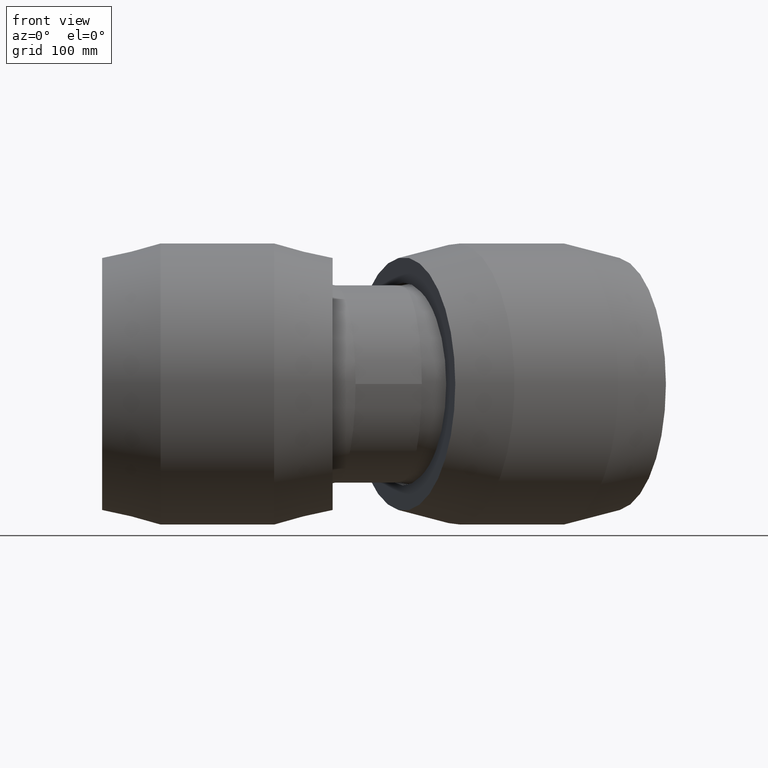
[diagram: clean part render]
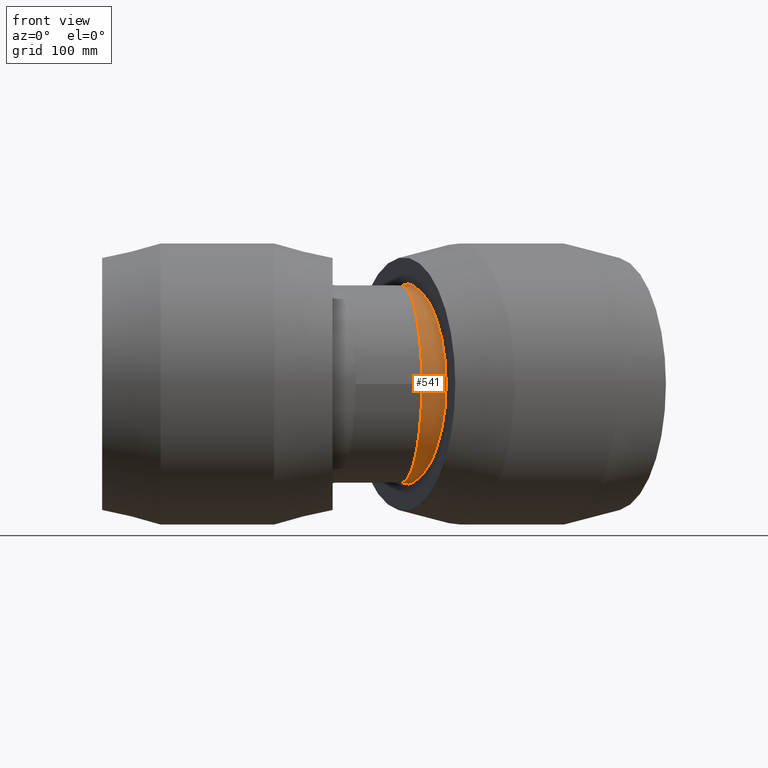
[diagram: same view with one face highlighted and labeled with its STEP entity id]
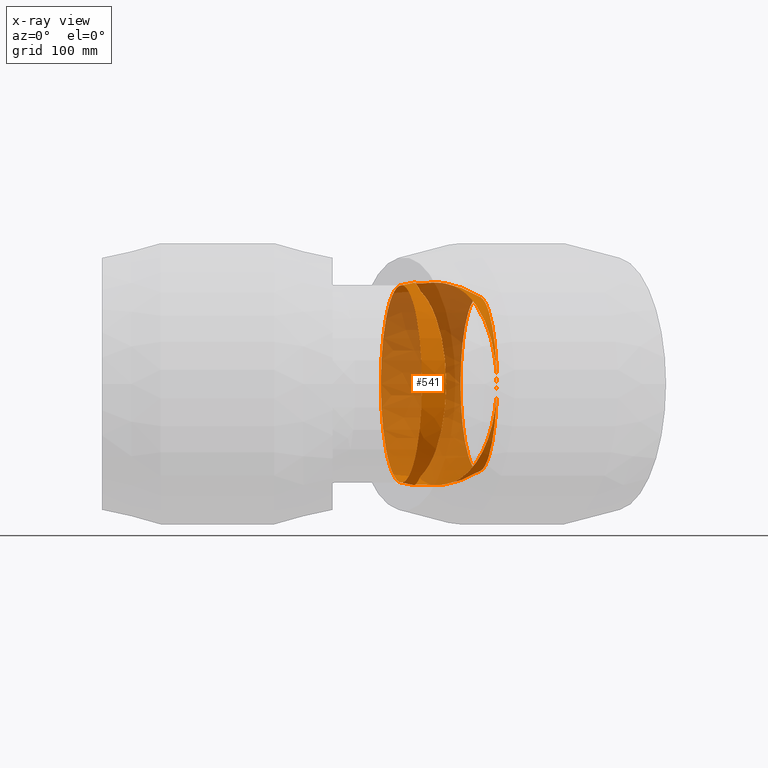
[diagram: x-ray of the same camera — body ghosted, the highlighted face saturated]
A machine part, front view. The second image highlights one B-rep face of the part: STEP entity #541.
The next image is the same camera in x-ray: the body ghosted, the highlighted face saturated — about 69% of this face is hidden behind the body in this view.
In plain terms, the highlighted spherical surface has radius 90.665 mm.
Its self-contained STEP definition (entity closure, byte-faithful):
#63=FACE_BOUND('',#164,.T.);
#113=FACE_OUTER_BOUND('',#163,.T.);
#163=EDGE_LOOP('',(#427,#428,#429,#430));
#164=EDGE_LOOP('',(#431));
#263=B_SPLINE_CURVE_WITH_KNOTS('',3,(#894,#895,#896,#897,#898,#899,#900,
#901,#902,#903,#904,#905,#906,#907,#908,#909,#910,#911,#912,#913,#914,#915,
#916,#917,#918,#919,#920,#921,#922,#923,#924,#925,#926,#927,#928,#929,#930,
#931,#932,#933,#934,#935,#936,#937,#938,#939,#940,#941,#942,#943),
 .UNSPECIFIED.,.F.,.F.,(4,2,2,2,2,2,2,2,2,2,2,2,2,2,2,2,2,2,2,2,2,2,2,2,
4),(-35.757579769343,-34.8452659109629,-33.6826763894783,-32.7835376110097,
-31.8843988325411,-31.5504887947384,-31.2165787569357,-30.8487852844384,
-30.6648885481897,-30.480991811941,-30.2970950756923,-30.1131983394436,
-29.7454048669463,-29.4114948291436,-29.0775847913409,-28.1784460128723,
-27.2793072344036,-26.1167177129191,-24.9541281914346,-23.7915386699501,
-22.6289491484656,-20.7818358378418,-18.934722527218,-17.0876092165943,
-15.2404959059705),.UNSPECIFIED.);
#264=B_SPLINE_CURVE_WITH_KNOTS('',3,(#946,#947,#948,#949,#950,#951,#952,
#953,#954,#955,#956,#957,#958,#959,#960,#961,#962,#963,#964,#965,#966,#967,
#968,#969,#970,#971,#972,#973,#974,#975,#976,#977,#978,#979,#980,#981,#982,
#983,#984,#985,#986,#987,#988,#989,#990,#991,#992,#993,#994,#995,#996),
 .UNSPECIFIED.,.F.,.F.,(4,2,2,2,2,2,2,2,2,2,2,2,2,2,2,3,2,2,2,2,2,2,2,2,
4),(-15.2404959059705,-13.3933825953467,-11.5462692847229,-9.69915597409916,
-7.85204266347539,-6.68945314199087,-5.52686362050636,-4.36427409902186,
-3.20168457753734,-2.30254579906871,-1.40340702060008,-1.0694969827974,
-0.735586944994715,-0.367793472497354,-0.183896736248677,0.,0.183896736248679,
0.367793472497358,0.735586944994716,1.0694969827974,1.40340702060008,2.30254579906871,
3.20168457753734,4.36427409902186,5.27658795740197),.UNSPECIFIED.);
#271=CIRCLE('',#594,77.5545348488274);
#272=CIRCLE('',#595,88.2964018100438);
#273=CIRCLE('',#596,87.6345348488275);
#319=VERTEX_POINT('',#891);
#320=VERTEX_POINT('',#893);
#321=VERTEX_POINT('',#944);
#322=VERTEX_POINT('',#997);
#371=EDGE_CURVE('',#319,#319,#271,.T.);
#372=EDGE_CURVE('',#320,#319,#263,.T.);
#373=EDGE_CURVE('',#321,#320,#272,.T.);
#374=EDGE_CURVE('',#319,#321,#264,.T.);
#375=EDGE_CURVE('',#322,#322,#273,.T.);
#427=ORIENTED_EDGE('',*,*,#371,.T.);
#428=ORIENTED_EDGE('',*,*,#372,.F.);
#429=ORIENTED_EDGE('',*,*,#373,.F.);
#430=ORIENTED_EDGE('',*,*,#374,.F.);
#431=ORIENTED_EDGE('',*,*,#375,.F.);
#539=SPHERICAL_SURFACE('',#593,90.665019527876);
#541=ADVANCED_FACE('',(#113,#63),#539,.T.);
#593=AXIS2_PLACEMENT_3D('',#890,#693,#694);
#594=AXIS2_PLACEMENT_3D('',#892,#695,#696);
#595=AXIS2_PLACEMENT_3D('',#945,#697,#698);
#596=AXIS2_PLACEMENT_3D('',#998,#699,#700);
#693=DIRECTION('center_axis',(0.,0.,1.));
#694=DIRECTION('ref_axis',(1.,0.,0.));
#695=DIRECTION('center_axis',(-0.978147600733806,-0.20791169081776,0.));
#696=DIRECTION('ref_axis',(0.20791169081776,-0.978147600733805,0.));
#697=DIRECTION('center_axis',(0.913545457642601,0.406736643075801,1.19788532833232E-16));
#698=DIRECTION('ref_axis',(1.31124873788268E-16,0.,-1.));
#699=DIRECTION('center_axis',(-0.978147600733806,-0.20791169081776,0.));
#700=DIRECTION('ref_axis',(0.20791169081776,-0.978147600733806,0.));
#890=CARTESIAN_POINT('Origin',(186.148207558864,17.8012310447395,0.));
#891=CARTESIAN_POINT('',(248.208578446485,-48.2945791952522,0.));
#892=CARTESIAN_POINT('Origin',(232.084083975481,27.5652029931547,0.));
#893=CARTESIAN_POINT('',(180.564919157522,-20.2775370237336,-82.0912911276526));
#894=CARTESIAN_POINT('Ctrl Pts',(180.564919157522,-20.2775370237336,-82.0912911276526));
#895=CARTESIAN_POINT('Ctrl Pts',(179.939312304106,-17.3342881844602,-83.4139935110416));
#896=CARTESIAN_POINT('Ctrl Pts',(179.327779989794,-14.3234918460492,-84.5698616363619));
#897=CARTESIAN_POINT('Ctrl Pts',(178.021539912347,-7.44630152799882,-86.7963450078792));
#898=CARTESIAN_POINT('Ctrl Pts',(177.349907582568,-3.57117025797748,-87.7551940559661));
#899=CARTESIAN_POINT('Ctrl Pts',(176.358406397541,3.11789745893124,-88.9813916379728));
#900=CARTESIAN_POINT('Ctrl Pts',(175.936446479055,6.355085383921,-89.4183237324101));
#901=CARTESIAN_POINT('Ctrl Pts',(175.330710356003,12.8742178822152,-89.9424106276693));
#902=CARTESIAN_POINT('Ctrl Pts',(175.148343220671,16.1562473451116,-90.0301369707387));
#903=CARTESIAN_POINT('Ctrl Pts',(175.207610676096,20.265621311673,-89.9756340901956));
#904=CARTESIAN_POINT('Ctrl Pts',(175.257263770188,21.488116227787,-89.9412638080811));
#905=CARTESIAN_POINT('Ctrl Pts',(175.474989487905,23.9181507177725,-89.8348619639355));
#906=CARTESIAN_POINT('Ctrl Pts',(175.644870451043,25.1255409161026,-89.7631271958564));
#907=CARTESIAN_POINT('Ctrl Pts',(176.141786989503,27.4057661972414,-89.6062120644133));
#908=CARTESIAN_POINT('Ctrl Pts',(176.52940112546,28.6896458305539,-89.5023364054593));
#909=CARTESIAN_POINT('Ctrl Pts',(177.433249713853,30.3536483751952,-89.3701989611816));
#910=CARTESIAN_POINT('Ctrl Pts',(177.788560409226,30.8647563400114,-89.3306923830535));
#911=CARTESIAN_POINT('Ctrl Pts',(178.629368208328,31.7335245555644,-89.2741297778446));
#912=CARTESIAN_POINT('Ctrl Pts',(179.114935954772,32.0911267411351,-89.2572321617784));
#913=CARTESIAN_POINT('Ctrl Pts',(180.234922808608,32.5897770156309,-89.2572321617784));
#914=CARTESIAN_POINT('Ctrl Pts',(180.825581263001,32.7113416065539,-89.2741297778446));
#915=CARTESIAN_POINT('Ctrl Pts',(182.033812099372,32.7548641688191,-89.3306923830535));
#916=CARTESIAN_POINT('Ctrl Pts',(182.651388599727,32.6769134911105,-89.3701989611815));
#917=CARTESIAN_POINT('Ctrl Pts',(184.492776234366,32.2351688609114,-89.5023364054593));
#918=CARTESIAN_POINT('Ctrl Pts',(185.706249222224,31.6641391427986,-89.6062120644133));
#919=CARTESIAN_POINT('Ctrl Pts',(187.733288905515,30.5076515720464,-89.7631271958564));
#920=CARTESIAN_POINT('Ctrl Pts',(188.744227235609,29.8259959952293,-89.8348619639355));
#921=CARTESIAN_POINT('Ctrl Pts',(190.695781734089,28.3617872839671,-89.9412638080811));
#922=CARTESIAN_POINT('Ctrl Pts',(191.637496910129,27.5806779594203,-89.9756340901956));
#923=CARTESIAN_POINT('Ctrl Pts',(194.731014577717,24.875014368238,-90.0301369707387));
#924=CARTESIAN_POINT('Ctrl Pts',(197.048010358288,22.5433828106835,-89.9424106276693));
#925=CARTESIAN_POINT('Ctrl Pts',(201.487353361685,17.7310820637151,-89.4183237324101));
#926=CARTESIAN_POINT('Ctrl Pts',(203.610706521124,15.2514032145874,-88.9813916379728));
#927=CARTESIAN_POINT('Ctrl Pts',(207.91820879307,10.0387143020897,-87.7551940559661));
#928=CARTESIAN_POINT('Ctrl Pts',(210.348582796357,6.94662527516174,-86.7963450078792));
#929=CARTESIAN_POINT('Ctrl Pts',(215.096318787057,0.702008380330429,-84.3013023349481));
#930=CARTESIAN_POINT('Ctrl Pts',(217.413734360713,-2.45044829692075,-82.7650325023574));
#931=CARTESIAN_POINT('Ctrl Pts',(221.834095873006,-8.59743114741443,-79.1665478416609));
#932=CARTESIAN_POINT('Ctrl Pts',(223.938851734004,-11.5943756443109,-77.1028854908024));
#933=CARTESIAN_POINT('Ctrl Pts',(227.855098929874,-17.2543703868189,-72.5860141572444));
#934=CARTESIAN_POINT('Ctrl Pts',(229.66664102247,-19.9174064355157,-70.1328313931804));
#935=CARTESIAN_POINT('Ctrl Pts',(233.903476890047,-26.2082980041975,-63.566111768345));
#936=CARTESIAN_POINT('Ctrl Pts',(236.318958967119,-29.863586194868,-58.9267322194174));
#937=CARTESIAN_POINT('Ctrl Pts',(240.556945195361,-36.3435734254835,-48.676773589641));
#938=CARTESIAN_POINT('Ctrl Pts',(242.380116969211,-39.1685457154558,-43.0666433118583));
#939=CARTESIAN_POINT('Ctrl Pts',(245.305197790519,-43.7253189653997,-31.2610463160221));
#940=CARTESIAN_POINT('Ctrl Pts',(246.409981554368,-45.4613522674793,-25.054537125492));
#941=CARTESIAN_POINT('Ctrl Pts',(247.861865874256,-47.7462691649001,-12.5026107910148));
#942=CARTESIAN_POINT('Ctrl Pts',(248.208578446485,-48.2945791952522,-6.15704436874602));
#943=CARTESIAN_POINT('Ctrl Pts',(248.208578446485,-48.2945791952522,-9.65894031423886E-14));
#944=CARTESIAN_POINT('',(180.564919157522,-20.2775370237338,82.0912911276525));
#945=CARTESIAN_POINT('Origin',(167.33956905614,9.4270856517282,-2.46628034979884E-15));
#946=CARTESIAN_POINT('Ctrl Pts',(248.208578446485,-48.2945791952522,-9.99200722162641E-14));
#947=CARTESIAN_POINT('Ctrl Pts',(248.208578446485,-48.2945791952522,6.15704436874582));
#948=CARTESIAN_POINT('Ctrl Pts',(247.861865874256,-47.7462691649001,12.5026107910146));
#949=CARTESIAN_POINT('Ctrl Pts',(246.409981554368,-45.4613522674793,25.0545371254918));
#950=CARTESIAN_POINT('Ctrl Pts',(245.305197790519,-43.7253189653998,31.2610463160219));
#951=CARTESIAN_POINT('Ctrl Pts',(242.380116969211,-39.1685457154559,43.0666433118581));
#952=CARTESIAN_POINT('Ctrl Pts',(240.556945195361,-36.3435734254836,48.6767735896408));
#953=CARTESIAN_POINT('Ctrl Pts',(236.318958967119,-29.8635861948681,58.9267322194173));
#954=CARTESIAN_POINT('Ctrl Pts',(233.903476890047,-26.2082980041976,63.5661117683449));
#955=CARTESIAN_POINT('Ctrl Pts',(229.66664102247,-19.9174064355158,70.1328313931802));
#956=CARTESIAN_POINT('Ctrl Pts',(227.855098929874,-17.254370386819,72.5860141572443));
#957=CARTESIAN_POINT('Ctrl Pts',(223.938851734004,-11.594375644311,77.1028854908023));
#958=CARTESIAN_POINT('Ctrl Pts',(221.834095873006,-8.59743114741466,79.1665478416608));
#959=CARTESIAN_POINT('Ctrl Pts',(217.413734360713,-2.45044829692101,82.7650325023573));
#960=CARTESIAN_POINT('Ctrl Pts',(215.096318787057,0.702008380330251,84.3013023349481));
#961=CARTESIAN_POINT('Ctrl Pts',(210.348582796357,6.94662527516153,86.7963450078791));
#962=CARTESIAN_POINT('Ctrl Pts',(207.91820879307,10.0387143020894,87.7551940559661));
#963=CARTESIAN_POINT('Ctrl Pts',(203.610706521124,15.2514032145872,88.9813916379728));
#964=CARTESIAN_POINT('Ctrl Pts',(201.487353361685,17.7310820637151,89.4183237324101));
#965=CARTESIAN_POINT('Ctrl Pts',(197.048010358288,22.5433828106835,89.9424106276693));
#966=CARTESIAN_POINT('Ctrl Pts',(194.731014577717,24.8750143682378,90.0301369707388));
#967=CARTESIAN_POINT('Ctrl Pts',(191.637496910129,27.5806779594201,89.9756340901957));
#968=CARTESIAN_POINT('Ctrl Pts',(190.69578173409,28.3617872839672,89.9412638080811));
#969=CARTESIAN_POINT('Ctrl Pts',(188.744227235609,29.8259959952294,89.8348619639355));
#970=CARTESIAN_POINT('Ctrl Pts',(187.733288905515,30.5076515720462,89.7631271958564));
#971=CARTESIAN_POINT('Ctrl Pts',(185.706249222224,31.6641391427984,89.6062120644133));
#972=CARTESIAN_POINT('Ctrl Pts',(184.492776234366,32.2351688609112,89.5023364054593));
#973=CARTESIAN_POINT('Ctrl Pts',(182.651388599727,32.6769134911103,89.3701989611815));
#974=CARTESIAN_POINT('Ctrl Pts',(182.033812099372,32.7548641688189,89.3306923830535));
#975=CARTESIAN_POINT('Ctrl Pts',(180.825581263001,32.7113416065536,89.2741297778446));
#976=CARTESIAN_POINT('Ctrl Pts',(180.234922808608,32.5897770156307,89.2572321617785));
#977=CARTESIAN_POINT('Ctrl Pts',(179.67492938169,32.3404518783828,89.2572321617785));
#978=CARTESIAN_POINT('Ctrl Pts',(179.114935954773,32.0911267411348,89.2572321617785));
#979=CARTESIAN_POINT('Ctrl Pts',(178.629368208328,31.7335245555643,89.2741297778446));
#980=CARTESIAN_POINT('Ctrl Pts',(177.788560409226,30.8647563400112,89.3306923830535));
#981=CARTESIAN_POINT('Ctrl Pts',(177.433249713852,30.3536483751952,89.3701989611815));
#982=CARTESIAN_POINT('Ctrl Pts',(176.529401125459,28.6896458305538,89.5023364054593));
#983=CARTESIAN_POINT('Ctrl Pts',(176.141786989504,27.4057661972412,89.6062120644133));
#984=CARTESIAN_POINT('Ctrl Pts',(175.644870451043,25.1255409161024,89.7631271958564));
#985=CARTESIAN_POINT('Ctrl Pts',(175.474989487905,23.9181507177724,89.8348619639355));
#986=CARTESIAN_POINT('Ctrl Pts',(175.257263770188,21.4881162277869,89.9412638080811));
#987=CARTESIAN_POINT('Ctrl Pts',(175.207610676096,20.2656213116728,89.9756340901957));
#988=CARTESIAN_POINT('Ctrl Pts',(175.148343220671,16.1562473451115,90.0301369707388));
#989=CARTESIAN_POINT('Ctrl Pts',(175.330710356003,12.8742178822151,89.9424106276693));
#990=CARTESIAN_POINT('Ctrl Pts',(175.936446479055,6.3550853839208,89.4183237324101));
#991=CARTESIAN_POINT('Ctrl Pts',(176.358406397542,3.11789745893103,88.9813916379728));
#992=CARTESIAN_POINT('Ctrl Pts',(177.349907582568,-3.57117025797769,87.7551940559661));
#993=CARTESIAN_POINT('Ctrl Pts',(178.021539912347,-7.44630152799901,86.7963450078792));
#994=CARTESIAN_POINT('Ctrl Pts',(179.327779989795,-14.3234918460493,84.5698616363618));
#995=CARTESIAN_POINT('Ctrl Pts',(179.939312304106,-17.3342881844604,83.4139935110414));
#996=CARTESIAN_POINT('Ctrl Pts',(180.564919157522,-20.2775370237338,82.0912911276525));
#997=CARTESIAN_POINT('',(181.631325833658,-72.7512042923107,0.));
#998=CARTESIAN_POINT('Origin',(163.411081519211,12.968305711493,0.));